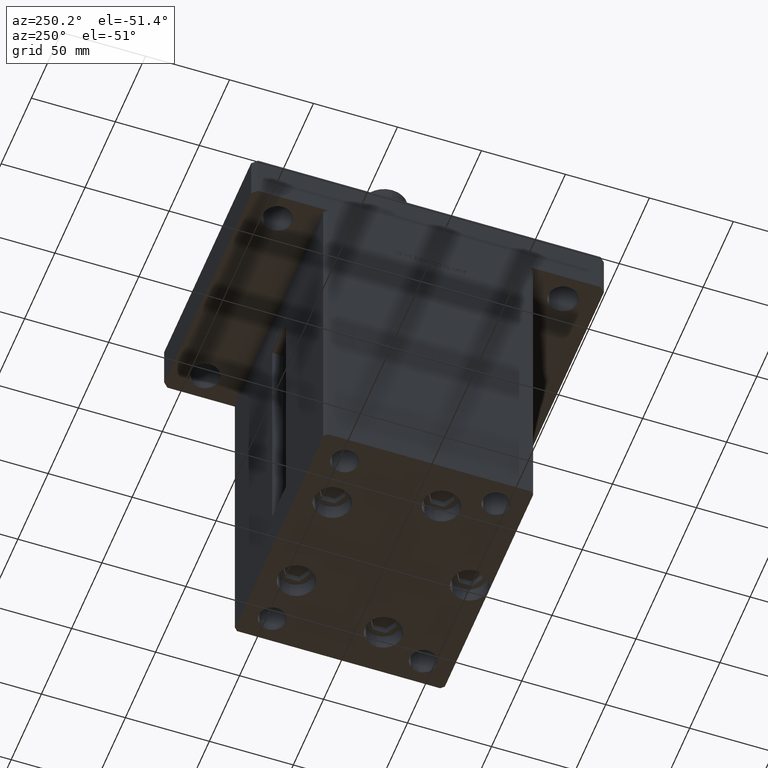
[diagram: clean part render]
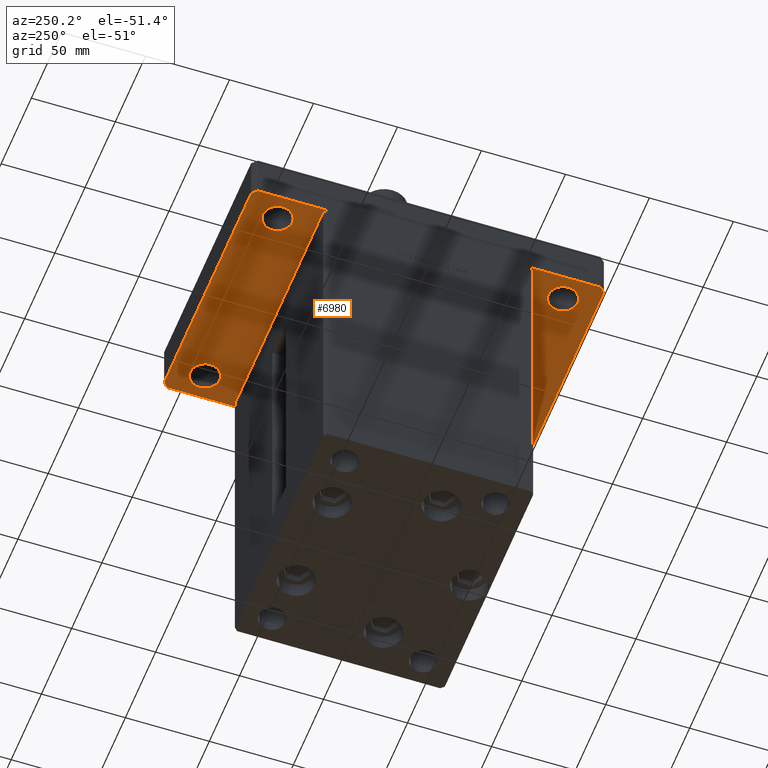
[diagram: same view with one face highlighted and labeled with its STEP entity id]
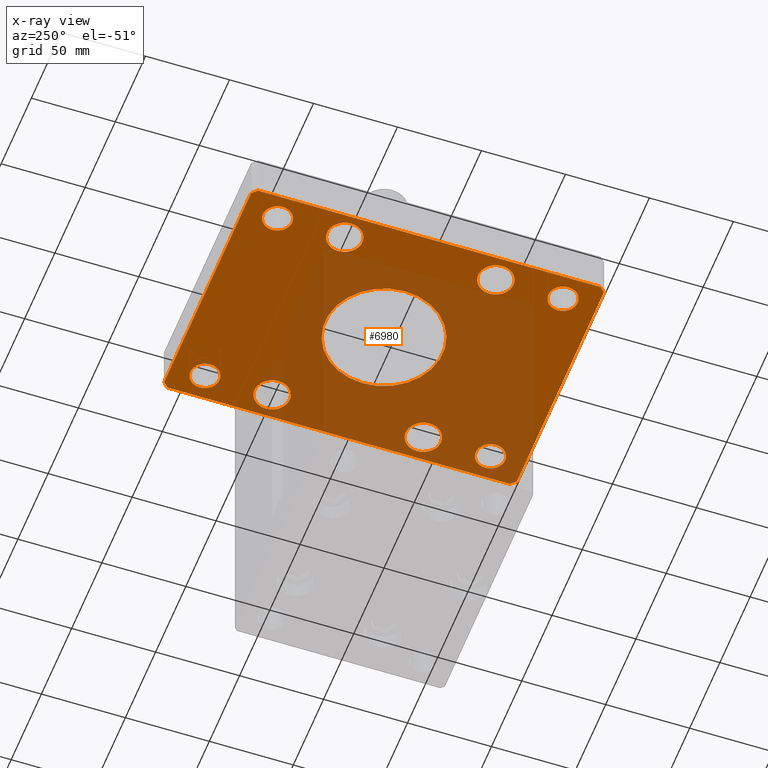
[diagram: x-ray of the same camera — body ghosted, the highlighted face saturated]
A machine part, auxiliary view. The second image highlights one B-rep face of the part: STEP entity #6980.
The next image is the same camera in x-ray: the body ghosted, the highlighted face saturated — about 52% of this face is hidden behind the body in this view.
In plain terms, the highlighted planar face has unit normal (0, 0, 1).
Its self-contained STEP definition (entity closure, byte-faithful):
#39 = ORIENTED_EDGE ( 'NONE', *, *, #15947, .F. ) ;
#658 = CARTESIAN_POINT ( 'NONE',  ( 72.00000000000004263, 105.0000000000000284, 0.000000000000000000 ) ) ;
#742 = AXIS2_PLACEMENT_3D ( 'NONE', #4224, #21016, #26432 ) ;
#770 = EDGE_CURVE ( 'NONE', #54154, #17229, #4015, .T. ) ;
#1307 = ORIENTED_EDGE ( 'NONE', *, *, #50273, .T. ) ;
#1745 = CIRCLE ( 'NONE', #14472, 35.00000000000000711 ) ;
#2005 = CIRCLE ( 'NONE', #31146, 8.750000000000007105 ) ;
#2096 = CARTESIAN_POINT ( 'NONE',  ( -70.50000000000000000, 45.00000000000001421, 0.000000000000000000 ) ) ;
#2238 = EDGE_CURVE ( 'NONE', #25537, #10994, #6795, .T. ) ;
#2331 = EDGE_LOOP ( 'NONE', ( #29978, #25236 ) ) ;
#2645 = CARTESIAN_POINT ( 'NONE',  ( -60.00000000000000000, 45.00000000000001421, 0.000000000000000000 ) ) ;
#3112 = EDGE_LOOP ( 'NONE', ( #33786, #38047 ) ) ;
#3328 = CARTESIAN_POINT ( 'NONE',  ( 72.00000000000004263, 105.0000000000000284, 0.000000000000000000 ) ) ;
#3380 = CARTESIAN_POINT ( 'NONE',  ( -68.75000000000000000, 84.99999999999997158, 0.000000000000000000 ) ) ;
#3569 = DIRECTION ( 'NONE',  ( 0.000000000000000000, 0.000000000000000000, 1.000000000000000000 ) ) ;
#3801 = EDGE_CURVE ( 'NONE', #36472, #49476, #50598, .T. ) ;
#3892 = CARTESIAN_POINT ( 'NONE',  ( 75.00000000000000000, -101.9999999999999005, 0.000000000000000000 ) ) ;
#4015 = CIRCLE ( 'NONE', #4888, 8.750000000000007105 ) ;
#4224 = CARTESIAN_POINT ( 'NONE',  ( -60.00000000000000711, 84.99999999999997158, 0.000000000000000000 ) ) ;
#4844 = CARTESIAN_POINT ( 'NONE',  ( -70.50000000000000000, -45.00000000000000000, 0.000000000000000000 ) ) ;
#4888 = AXIS2_PLACEMENT_3D ( 'NONE', #51503, #3569, #34623 ) ;
#5220 = LINE ( 'NONE', #658, #5749 ) ;
#5442 = CARTESIAN_POINT ( 'NONE',  ( 59.99999999999997158, -85.00000000000001421, 0.000000000000000000 ) ) ;
#5749 = VECTOR ( 'NONE', #35163, 1000.000000000000000 ) ;
#5875 = CIRCLE ( 'NONE', #13150, 35.00000000000000711 ) ;
#6119 = ORIENTED_EDGE ( 'NONE', *, *, #23218, .T. ) ;
#6412 = CARTESIAN_POINT ( 'NONE',  ( 0.000000000000000000, 0.000000000000000000, 0.000000000000000000 ) ) ;
#6532 = DIRECTION ( 'NONE',  ( -0.7071067811865459074, -0.7071067811865491270, 0.000000000000000000 ) ) ;
#6689 = FACE_BOUND ( 'NONE', #3112, .T. ) ;
#6695 = DIRECTION ( 'NONE',  ( 0.000000000000000000, 0.000000000000000000, 1.000000000000000000 ) ) ;
#6795 = CIRCLE ( 'NONE', #11355, 10.49999999999999467 ) ;
#6882 = CARTESIAN_POINT ( 'NONE',  ( 49.50000000000000000, 45.00000000000000711, 0.000000000000000000 ) ) ;
#6980 = ADVANCED_FACE ( 'NONE', ( #17281, #48949, #9851, #13010, #30401, #8741, #21842, #39254, #6689, #45209 ), #45773, .F. ) ;
#7437 = CIRCLE ( 'NONE', #35641, 10.50000000000000178 ) ;
#7515 = VECTOR ( 'NONE', #32672, 1000.000000000000114 ) ;
#7589 = VERTEX_POINT ( 'NONE', #25986 ) ;
#7710 = DIRECTION ( 'NONE',  ( 0.000000000000000000, 0.000000000000000000, 1.000000000000000000 ) ) ;
#7875 = LINE ( 'NONE', #37816, #7515 ) ;
#8638 = CARTESIAN_POINT ( 'NONE',  ( -72.00000000000002842, 105.0000000000000000, 0.000000000000000000 ) ) ;
#8741 = FACE_BOUND ( 'NONE', #42308, .T. ) ;
#8864 = VERTEX_POINT ( 'NONE', #4844 ) ;
#9348 = AXIS2_PLACEMENT_3D ( 'NONE', #20242, #11710, #29098 ) ;
#9444 = ORIENTED_EDGE ( 'NONE', *, *, #42112, .F. ) ;
#9851 = FACE_BOUND ( 'NONE', #43064, .T. ) ;
#10212 = DIRECTION ( 'NONE',  ( 6.802837160693364103E-17, 1.000000000000000000, 0.000000000000000000 ) ) ;
#10230 = AXIS2_PLACEMENT_3D ( 'NONE', #35917, #31897, #23337 ) ;
#10340 = CARTESIAN_POINT ( 'NONE',  ( -74.99999999999998579, -102.0000000000000142, 0.000000000000000000 ) ) ;
#10399 = DIRECTION ( 'NONE',  ( 0.000000000000000000, 0.000000000000000000, 1.000000000000000000 ) ) ;
#10806 = CARTESIAN_POINT ( 'NONE',  ( -72.00000000000002842, 105.0000000000000000, 0.000000000000000000 ) ) ;
#10994 = VERTEX_POINT ( 'NONE', #55779 ) ;
#11097 = CARTESIAN_POINT ( 'NONE',  ( 75.00000000000001421, 102.0000000000000142, 0.000000000000000000 ) ) ;
#11355 = AXIS2_PLACEMENT_3D ( 'NONE', #45660, #24234, #19389 ) ;
#11710 = DIRECTION ( 'NONE',  ( 0.000000000000000000, 0.000000000000000000, 1.000000000000000000 ) ) ;
#11804 = DIRECTION ( 'NONE',  ( 0.000000000000000000, 0.000000000000000000, 1.000000000000000000 ) ) ;
#11952 = EDGE_CURVE ( 'NONE', #51579, #42647, #45712, .T. ) ;
#12175 = EDGE_CURVE ( 'NONE', #37546, #14465, #20783, .T. ) ;
#13010 = FACE_BOUND ( 'NONE', #14015, .T. ) ;
#13067 = DIRECTION ( 'NONE',  ( 1.000000000000000000, 0.000000000000000000, 0.000000000000000000 ) ) ;
#13150 = AXIS2_PLACEMENT_3D ( 'NONE', #34723, #25309, #52164 ) ;
#14015 = EDGE_LOOP ( 'NONE', ( #26152, #22103 ) ) ;
#14293 = VERTEX_POINT ( 'NONE', #16675 ) ;
#14389 = VECTOR ( 'NONE', #6532, 1000.000000000000114 ) ;
#14441 = VECTOR ( 'NONE', #19952, 1000.000000000000000 ) ;
#14465 = VERTEX_POINT ( 'NONE', #2096 ) ;
#14472 = AXIS2_PLACEMENT_3D ( 'NONE', #20533, #43108, #29957 ) ;
#14505 = CARTESIAN_POINT ( 'NONE',  ( -49.49999999999999289, -45.00000000000000000, 0.000000000000000000 ) ) ;
#15158 = DIRECTION ( 'NONE',  ( 0.7071067811865474617, -0.7071067811865474617, 0.000000000000000000 ) ) ;
#15244 = AXIS2_PLACEMENT_3D ( 'NONE', #5442, #49939, #18264 ) ;
#15516 = VERTEX_POINT ( 'NONE', #27152 ) ;
#15785 = VECTOR ( 'NONE', #10212, 1000.000000000000000 ) ;
#15947 = EDGE_CURVE ( 'NONE', #40045, #15516, #49907, .T. ) ;
#16064 = ORIENTED_EDGE ( 'NONE', *, *, #11952, .F. ) ;
#16603 = CARTESIAN_POINT ( 'NONE',  ( -71.99999999999998579, -105.0000000000000142, 0.000000000000000000 ) ) ;
#16615 = CARTESIAN_POINT ( 'NONE',  ( -59.99999999999997158, -85.00000000000001421, 0.000000000000000000 ) ) ;
#16675 = CARTESIAN_POINT ( 'NONE',  ( 70.50000000000000000, 45.00000000000000711, 0.000000000000000000 ) ) ;
#16780 = VERTEX_POINT ( 'NONE', #14505 ) ;
#17229 = VERTEX_POINT ( 'NONE', #27838 ) ;
#17234 = DIRECTION ( 'NONE',  ( 0.000000000000000000, 0.000000000000000000, 1.000000000000000000 ) ) ;
#17281 = FACE_BOUND ( 'NONE', #23939, .T. ) ;
#17652 = CARTESIAN_POINT ( 'NONE',  ( -49.49999999999999289, 45.00000000000001421, 0.000000000000000000 ) ) ;
#17799 = DIRECTION ( 'NONE',  ( 1.000000000000000000, 0.000000000000000000, 0.000000000000000000 ) ) ;
#17979 = EDGE_CURVE ( 'NONE', #7589, #47318, #1745, .T. ) ;
#18206 = LINE ( 'NONE', #31599, #15785 ) ;
#18264 = DIRECTION ( 'NONE',  ( 1.000000000000000000, 0.000000000000000000, 0.000000000000000000 ) ) ;
#18290 = EDGE_CURVE ( 'NONE', #32150, #50402, #34519, .T. ) ;
#18497 = EDGE_CURVE ( 'NONE', #19767, #14293, #51909, .T. ) ;
#18650 = DIRECTION ( 'NONE',  ( 0.000000000000000000, 0.000000000000000000, 1.000000000000000000 ) ) ;
#19389 = DIRECTION ( 'NONE',  ( 1.000000000000000000, 0.000000000000000000, 0.000000000000000000 ) ) ;
#19717 = VERTEX_POINT ( 'NONE', #37391 ) ;
#19767 = VERTEX_POINT ( 'NONE', #6882 ) ;
#19952 = DIRECTION ( 'NONE',  ( 1.000000000000000000, 7.709882115452476194E-16, 0.000000000000000000 ) ) ;
#20242 = CARTESIAN_POINT ( 'NONE',  ( -60.00000000000000000, 45.00000000000001421, 0.000000000000000000 ) ) ;
#20355 = CARTESIAN_POINT ( 'NONE',  ( -60.00000000000000000, -45.00000000000000000, 0.000000000000000000 ) ) ;
#20512 = CARTESIAN_POINT ( 'NONE',  ( -60.00000000000000000, -45.00000000000000000, 0.000000000000000000 ) ) ;
#20533 = CARTESIAN_POINT ( 'NONE',  ( 0.000000000000000000, 0.000000000000000000, 0.000000000000000000 ) ) ;
#20613 = ORIENTED_EDGE ( 'NONE', *, *, #29090, .F. ) ;
#20683 = ORIENTED_EDGE ( 'NONE', *, *, #18290, .T. ) ;
#20708 = CIRCLE ( 'NONE', #15244, 8.750000000000007105 ) ;
#20751 = CIRCLE ( 'NONE', #742, 8.750000000000007105 ) ;
#20783 = CIRCLE ( 'NONE', #52681, 10.50000000000000178 ) ;
#20791 = CARTESIAN_POINT ( 'NONE',  ( -51.25000000000000000, 84.99999999999997158, 0.000000000000000000 ) ) ;
#21016 = DIRECTION ( 'NONE',  ( 0.000000000000000000, 0.000000000000000000, 1.000000000000000000 ) ) ;
#21575 = EDGE_LOOP ( 'NONE', ( #41817, #16064, #29601, #39, #20613, #53030, #32675, #33478 ) ) ;
#21842 = FACE_BOUND ( 'NONE', #2331, .T. ) ;
#22103 = ORIENTED_EDGE ( 'NONE', *, *, #31658, .T. ) ;
#22151 = CARTESIAN_POINT ( 'NONE',  ( 51.24999999999998579, 84.99999999999998579, 0.000000000000000000 ) ) ;
#22733 = CARTESIAN_POINT ( 'NONE',  ( -35.00000000000000711, 0.000000000000000000, 0.000000000000000000 ) ) ;
#23218 = EDGE_CURVE ( 'NONE', #41743, #19717, #40137, .T. ) ;
#23303 = AXIS2_PLACEMENT_3D ( 'NONE', #6412, #10399, #45493 ) ;
#23337 = DIRECTION ( 'NONE',  ( 1.000000000000000000, 0.000000000000000000, 0.000000000000000000 ) ) ;
#23595 = ORIENTED_EDGE ( 'NONE', *, *, #51624, .T. ) ;
#23929 = AXIS2_PLACEMENT_3D ( 'NONE', #56374, #17234, #17799 ) ;
#23939 = EDGE_LOOP ( 'NONE', ( #9444, #52845 ) ) ;
#24234 = DIRECTION ( 'NONE',  ( 0.000000000000000000, 0.000000000000000000, 1.000000000000000000 ) ) ;
#24880 = DIRECTION ( 'NONE',  ( 1.000000000000000000, 0.000000000000000000, 0.000000000000000000 ) ) ;
#25236 = ORIENTED_EDGE ( 'NONE', *, *, #32050, .T. ) ;
#25309 = DIRECTION ( 'NONE',  ( 0.000000000000000000, 0.000000000000000000, -1.000000000000000000 ) ) ;
#25537 = VERTEX_POINT ( 'NONE', #40386 ) ;
#25706 = CIRCLE ( 'NONE', #10230, 10.49999999999999467 ) ;
#25986 = CARTESIAN_POINT ( 'NONE',  ( 35.00000000000000711, 4.286263797015737285E-15, 0.000000000000000000 ) ) ;
#26152 = ORIENTED_EDGE ( 'NONE', *, *, #770, .T. ) ;
#26197 = EDGE_CURVE ( 'NONE', #16780, #8864, #35687, .T. ) ;
#26432 = DIRECTION ( 'NONE',  ( 1.000000000000000000, 0.000000000000000000, 0.000000000000000000 ) ) ;
#27072 = EDGE_CURVE ( 'NONE', #14465, #37546, #28468, .T. ) ;
#27152 = CARTESIAN_POINT ( 'NONE',  ( -75.00000000000001421, 102.0000000000000000, 0.000000000000000000 ) ) ;
#27447 = VECTOR ( 'NONE', #37044, 1000.000000000000000 ) ;
#27838 = CARTESIAN_POINT ( 'NONE',  ( 68.75000000000000000, 84.99999999999998579, 0.000000000000000000 ) ) ;
#28202 = EDGE_CURVE ( 'NONE', #52123, #28695, #33041, .T. ) ;
#28230 = CARTESIAN_POINT ( 'NONE',  ( -68.74999999999997158, -85.00000000000001421, 0.000000000000000000 ) ) ;
#28468 = CIRCLE ( 'NONE', #9348, 10.50000000000000178 ) ;
#28695 = VERTEX_POINT ( 'NONE', #3328 ) ;
#28888 = CARTESIAN_POINT ( 'NONE',  ( 60.00000000000000000, 84.99999999999998579, 0.000000000000000000 ) ) ;
#29090 = EDGE_CURVE ( 'NONE', #28695, #40045, #5220, .T. ) ;
#29098 = DIRECTION ( 'NONE',  ( 1.000000000000000000, 0.000000000000000000, 0.000000000000000000 ) ) ;
#29584 = CARTESIAN_POINT ( 'NONE',  ( -74.99999999999998579, -102.0000000000000142, 0.000000000000000000 ) ) ;
#29601 = ORIENTED_EDGE ( 'NONE', *, *, #52007, .F. ) ;
#29918 = EDGE_CURVE ( 'NONE', #8864, #16780, #7437, .T. ) ;
#29957 = DIRECTION ( 'NONE',  ( -1.000000000000000000, 0.000000000000000000, 0.000000000000000000 ) ) ;
#29978 = ORIENTED_EDGE ( 'NONE', *, *, #2238, .T. ) ;
#29987 = AXIS2_PLACEMENT_3D ( 'NONE', #54919, #50622, #36895 ) ;
#30401 = FACE_BOUND ( 'NONE', #52018, .T. ) ;
#31146 = AXIS2_PLACEMENT_3D ( 'NONE', #28888, #46588, #24880 ) ;
#31599 = CARTESIAN_POINT ( 'NONE',  ( 75.00000000000000000, -101.9999999999999005, 0.000000000000000000 ) ) ;
#31658 = EDGE_CURVE ( 'NONE', #17229, #54154, #2005, .T. ) ;
#31897 = DIRECTION ( 'NONE',  ( 0.000000000000000000, 0.000000000000000000, 1.000000000000000000 ) ) ;
#32050 = EDGE_CURVE ( 'NONE', #10994, #25537, #25706, .T. ) ;
#32150 = VERTEX_POINT ( 'NONE', #3380 ) ;
#32471 = EDGE_CURVE ( 'NONE', #39493, #40637, #7875, .T. ) ;
#32672 = DIRECTION ( 'NONE',  ( 0.7071067811865459074, 0.7071067811865491270, 0.000000000000000000 ) ) ;
#32675 = ORIENTED_EDGE ( 'NONE', *, *, #36808, .F. ) ;
#33041 = LINE ( 'NONE', #11097, #27447 ) ;
#33478 = ORIENTED_EDGE ( 'NONE', *, *, #32471, .F. ) ;
#33769 = CARTESIAN_POINT ( 'NONE',  ( 75.00000000000001421, 102.0000000000000142, 0.000000000000000000 ) ) ;
#33786 = ORIENTED_EDGE ( 'NONE', *, *, #27072, .T. ) ;
#33961 = CIRCLE ( 'NONE', #23929, 8.750000000000007105 ) ;
#34191 = EDGE_CURVE ( 'NONE', #49476, #36472, #33961, .T. ) ;
#34307 = DIRECTION ( 'NONE',  ( 1.000000000000000000, 0.000000000000000000, 0.000000000000000000 ) ) ;
#34519 = CIRCLE ( 'NONE', #49114, 8.750000000000007105 ) ;
#34623 = DIRECTION ( 'NONE',  ( 1.000000000000000000, 0.000000000000000000, 0.000000000000000000 ) ) ;
#34723 = CARTESIAN_POINT ( 'NONE',  ( 0.000000000000000000, 0.000000000000000000, 0.000000000000000000 ) ) ;
#34911 = ORIENTED_EDGE ( 'NONE', *, *, #34191, .T. ) ;
#35163 = DIRECTION ( 'NONE',  ( -1.000000000000000000, -1.927470528863118062E-16, 0.000000000000000000 ) ) ;
#35641 = AXIS2_PLACEMENT_3D ( 'NONE', #20355, #6695, #37773 ) ;
#35687 = CIRCLE ( 'NONE', #48506, 10.50000000000000178 ) ;
#35917 = CARTESIAN_POINT ( 'NONE',  ( 60.00000000000000000, -45.00000000000000711, 0.000000000000000000 ) ) ;
#36472 = VERTEX_POINT ( 'NONE', #28230 ) ;
#36808 = EDGE_CURVE ( 'NONE', #40637, #52123, #18206, .T. ) ;
#36895 = DIRECTION ( 'NONE',  ( 1.000000000000000000, 0.000000000000000000, 0.000000000000000000 ) ) ;
#37044 = DIRECTION ( 'NONE',  ( -0.7071067811865426878, 0.7071067811865524577, 0.000000000000000000 ) ) ;
#37391 = CARTESIAN_POINT ( 'NONE',  ( 68.74999999999997158, -85.00000000000001421, 0.000000000000000000 ) ) ;
#37546 = VERTEX_POINT ( 'NONE', #17652 ) ;
#37689 = ORIENTED_EDGE ( 'NONE', *, *, #3801, .T. ) ;
#37773 = DIRECTION ( 'NONE',  ( 1.000000000000000000, 0.000000000000000000, 0.000000000000000000 ) ) ;
#37775 = AXIS2_PLACEMENT_3D ( 'NONE', #16615, #11804, #34307 ) ;
#37816 = CARTESIAN_POINT ( 'NONE',  ( 72.00000000000001421, -104.9999999999999005, 0.000000000000000000 ) ) ;
#37877 = CARTESIAN_POINT ( 'NONE',  ( 72.00000000000001421, -104.9999999999999005, 0.000000000000000000 ) ) ;
#38047 = ORIENTED_EDGE ( 'NONE', *, *, #12175, .T. ) ;
#38107 = VECTOR ( 'NONE', #15158, 1000.000000000000114 ) ;
#38735 = ORIENTED_EDGE ( 'NONE', *, *, #29918, .T. ) ;
#39043 = CARTESIAN_POINT ( 'NONE',  ( 59.99999999999997158, -85.00000000000001421, 0.000000000000000000 ) ) ;
#39254 = FACE_BOUND ( 'NONE', #52578, .T. ) ;
#39493 = VERTEX_POINT ( 'NONE', #37877 ) ;
#40045 = VERTEX_POINT ( 'NONE', #8638 ) ;
#40137 = CIRCLE ( 'NONE', #50170, 8.750000000000007105 ) ;
#40386 = CARTESIAN_POINT ( 'NONE',  ( 49.50000000000000000, -45.00000000000000711, 0.000000000000000000 ) ) ;
#40637 = VERTEX_POINT ( 'NONE', #3892 ) ;
#41457 = AXIS2_PLACEMENT_3D ( 'NONE', #49207, #18650, #53499 ) ;
#41641 = CARTESIAN_POINT ( 'NONE',  ( -51.24999999999996447, -85.00000000000001421, 0.000000000000000000 ) ) ;
#41743 = VERTEX_POINT ( 'NONE', #51164 ) ;
#41817 = ORIENTED_EDGE ( 'NONE', *, *, #56137, .F. ) ;
#42009 = DIRECTION ( 'NONE',  ( 0.000000000000000000, 0.000000000000000000, 1.000000000000000000 ) ) ;
#42112 = EDGE_CURVE ( 'NONE', #47318, #7589, #5875, .T. ) ;
#42307 = ORIENTED_EDGE ( 'NONE', *, *, #26197, .T. ) ;
#42308 = EDGE_LOOP ( 'NONE', ( #38735, #42307 ) ) ;
#42647 = VERTEX_POINT ( 'NONE', #16603 ) ;
#43064 = EDGE_LOOP ( 'NONE', ( #37689, #34911 ) ) ;
#43108 = DIRECTION ( 'NONE',  ( 0.000000000000000000, 0.000000000000000000, -1.000000000000000000 ) ) ;
#43309 = EDGE_CURVE ( 'NONE', #14293, #19767, #49652, .T. ) ;
#45209 = FACE_BOUND ( 'NONE', #49022, .T. ) ;
#45363 = VECTOR ( 'NONE', #48958, 1000.000000000000000 ) ;
#45484 = ORIENTED_EDGE ( 'NONE', *, *, #43309, .T. ) ;
#45493 = DIRECTION ( 'NONE',  ( 1.000000000000000000, 0.000000000000000000, -0.000000000000000000 ) ) ;
#45660 = CARTESIAN_POINT ( 'NONE',  ( 60.00000000000000000, -45.00000000000000711, 0.000000000000000000 ) ) ;
#45712 = LINE ( 'NONE', #10340, #38107 ) ;
#45773 = PLANE ( 'NONE',  #23303 ) ;
#46588 = DIRECTION ( 'NONE',  ( 0.000000000000000000, 0.000000000000000000, 1.000000000000000000 ) ) ;
#47250 = DIRECTION ( 'NONE',  ( 1.000000000000000000, 0.000000000000000000, 0.000000000000000000 ) ) ;
#47318 = VERTEX_POINT ( 'NONE', #22733 ) ;
#48506 = AXIS2_PLACEMENT_3D ( 'NONE', #20512, #7710, #49949 ) ;
#48949 = FACE_OUTER_BOUND ( 'NONE', #21575, .T. ) ;
#48958 = DIRECTION ( 'NONE',  ( 1.360567432138672081E-16, -1.000000000000000000, 0.000000000000000000 ) ) ;
#49022 = EDGE_LOOP ( 'NONE', ( #6119, #1307 ) ) ;
#49114 = AXIS2_PLACEMENT_3D ( 'NONE', #51543, #54769, #47250 ) ;
#49207 = CARTESIAN_POINT ( 'NONE',  ( 60.00000000000000000, 45.00000000000000711, 0.000000000000000000 ) ) ;
#49384 = CARTESIAN_POINT ( 'NONE',  ( -71.99999999999998579, -105.0000000000000142, 0.000000000000000000 ) ) ;
#49476 = VERTEX_POINT ( 'NONE', #41641 ) ;
#49652 = CIRCLE ( 'NONE', #41457, 10.49999999999999467 ) ;
#49907 = LINE ( 'NONE', #10806, #14389 ) ;
#49939 = DIRECTION ( 'NONE',  ( 0.000000000000000000, 0.000000000000000000, 1.000000000000000000 ) ) ;
#49949 = DIRECTION ( 'NONE',  ( 1.000000000000000000, 0.000000000000000000, 0.000000000000000000 ) ) ;
#50170 = AXIS2_PLACEMENT_3D ( 'NONE', #39043, #55349, #13067 ) ;
#50273 = EDGE_CURVE ( 'NONE', #19717, #41743, #20708, .T. ) ;
#50402 = VERTEX_POINT ( 'NONE', #20791 ) ;
#50598 = CIRCLE ( 'NONE', #37775, 8.750000000000007105 ) ;
#50622 = DIRECTION ( 'NONE',  ( 0.000000000000000000, 0.000000000000000000, 1.000000000000000000 ) ) ;
#51164 = CARTESIAN_POINT ( 'NONE',  ( 51.24999999999995737, -85.00000000000001421, 0.000000000000000000 ) ) ;
#51503 = CARTESIAN_POINT ( 'NONE',  ( 60.00000000000000000, 84.99999999999998579, 0.000000000000000000 ) ) ;
#51543 = CARTESIAN_POINT ( 'NONE',  ( -60.00000000000000711, 84.99999999999997158, 0.000000000000000000 ) ) ;
#51579 = VERTEX_POINT ( 'NONE', #29584 ) ;
#51624 = EDGE_CURVE ( 'NONE', #50402, #32150, #20751, .T. ) ;
#51909 = CIRCLE ( 'NONE', #29987, 10.49999999999999467 ) ;
#52007 = EDGE_CURVE ( 'NONE', #15516, #51579, #53805, .T. ) ;
#52018 = EDGE_LOOP ( 'NONE', ( #20683, #23595 ) ) ;
#52123 = VERTEX_POINT ( 'NONE', #33769 ) ;
#52164 = DIRECTION ( 'NONE',  ( -1.000000000000000000, 0.000000000000000000, 0.000000000000000000 ) ) ;
#52578 = EDGE_LOOP ( 'NONE', ( #53828, #45484 ) ) ;
#52681 = AXIS2_PLACEMENT_3D ( 'NONE', #2645, #42009, #55717 ) ;
#52845 = ORIENTED_EDGE ( 'NONE', *, *, #17979, .F. ) ;
#53030 = ORIENTED_EDGE ( 'NONE', *, *, #28202, .F. ) ;
#53248 = CARTESIAN_POINT ( 'NONE',  ( -75.00000000000001421, 102.0000000000000000, 0.000000000000000000 ) ) ;
#53499 = DIRECTION ( 'NONE',  ( 1.000000000000000000, 0.000000000000000000, 0.000000000000000000 ) ) ;
#53805 = LINE ( 'NONE', #53248, #45363 ) ;
#53828 = ORIENTED_EDGE ( 'NONE', *, *, #18497, .T. ) ;
#54154 = VERTEX_POINT ( 'NONE', #22151 ) ;
#54236 = LINE ( 'NONE', #49384, #14441 ) ;
#54769 = DIRECTION ( 'NONE',  ( 0.000000000000000000, 0.000000000000000000, 1.000000000000000000 ) ) ;
#54919 = CARTESIAN_POINT ( 'NONE',  ( 60.00000000000000000, 45.00000000000000711, 0.000000000000000000 ) ) ;
#55349 = DIRECTION ( 'NONE',  ( 0.000000000000000000, 0.000000000000000000, 1.000000000000000000 ) ) ;
#55717 = DIRECTION ( 'NONE',  ( 1.000000000000000000, 0.000000000000000000, 0.000000000000000000 ) ) ;
#55779 = CARTESIAN_POINT ( 'NONE',  ( 70.50000000000000000, -45.00000000000000711, 0.000000000000000000 ) ) ;
#56137 = EDGE_CURVE ( 'NONE', #42647, #39493, #54236, .T. ) ;
#56374 = CARTESIAN_POINT ( 'NONE',  ( -59.99999999999997158, -85.00000000000001421, 0.000000000000000000 ) ) ;